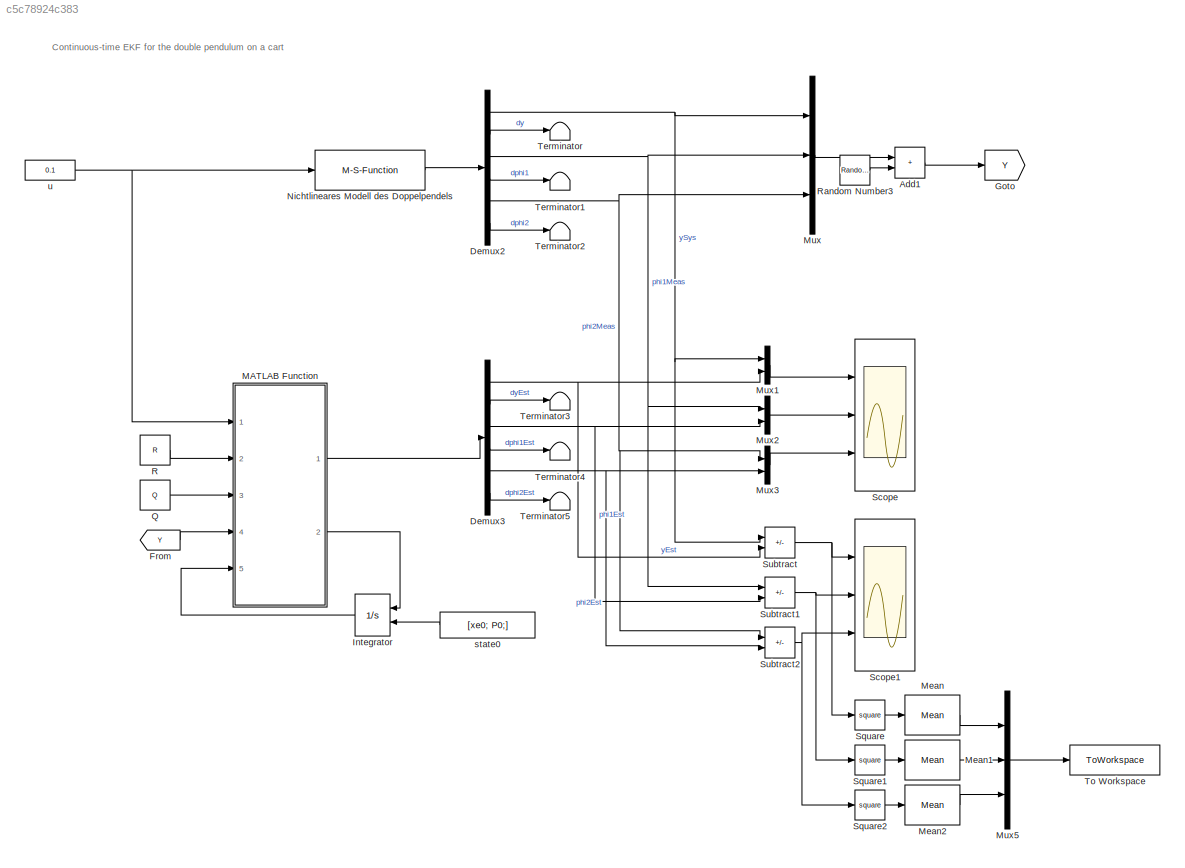
MODEL slx_c5c78924c383
KIND model
CONFIG AbsTol = auto
CONFIG EnableMultiTasking = on
CONFIG FixedStep = 0.01
CONFIG MaxStep = 0.05
CONFIG MinStep = auto
CONFIG RelTol = 1e-3
CONFIG SampleTimeConstraint = Unconstrained
CONFIG Solver = ode45
CONFIG SolverName = ode45
CONFIG StartTime = 0.0
CONFIG StopTime = 30
BLOCK [Sum] Add1
  IconShape = rectangular
  Ports = [2, 1]
BLOCK [Demux] Demux2
  Outputs = 6
  Ports = [1, 6]
BLOCK [Demux] Demux3
  Outputs = 6
  Ports = [1, 6]
BLOCK [From] From
  GotoTag = Y
BLOCK [Goto] Goto
  GotoTag = Y
BLOCK [Integrator] Integrator
  InitialConditionSource = external
  Ports = [2, 1]
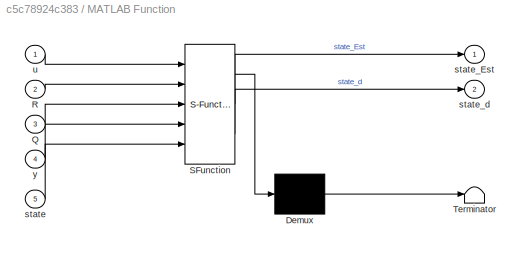
BLOCK [SubSystem] MATLAB Function
  ErrorFcn = Stateflow.Translate.translate
  PermitHierarchicalResolution = ExplicitOnly
  Ports = [5, 2]
  SFBlockType = MATLAB Function
  TreatAsAtomicUnit = on
BLOCK [Demux] MATLAB Function/ Demux 
  Outputs = 1
  Ports = [1, 1]
BLOCK [S-Function] MATLAB Function/ SFunction 
  EnableBusSupport = on
  FunctionName = sf_sfun
  Parameters = par
  PortCounts = [5 3]
  Ports = [5, 3]
  SFcnIsStateOwnerBlock = off
  SFunctionDeploymentMode = off
  Tag = Stateflow S-Function dip_ekf_sim_student_r2017b 2
BLOCK [Terminator] MATLAB Function/ Terminator 
BLOCK [Inport] MATLAB Function/Q
  Port = 3
BLOCK [Inport] MATLAB Function/R
  Port = 2
BLOCK [Inport] MATLAB Function/state
  Port = 5
BLOCK [Outport] MATLAB Function/state_Est
  VectorParamsAs1DForOutWhenUnconnected = off
BLOCK [Outport] MATLAB Function/state_d
  Port = 2
  VectorParamsAs1DForOutWhenUnconnected = off
BLOCK [Inport] MATLAB Function/u
BLOCK [Inport] MATLAB Function/y
  Port = 4
BLOCK [Reference] Mean  REF=dspstat3/Mean
  Ports = [1, 1]
  SourceBlock = dspstat3/Mean
  SourceType = Mean
  UserDataPersistent = on
BLOCK [Reference] Mean1  REF=dspstat3/Mean
  Ports = [1, 1]
  SourceBlock = dspstat3/Mean
  SourceType = Mean
  UserDataPersistent = on
BLOCK [Reference] Mean2  REF=dspstat3/Mean
  Ports = [1, 1]
  SourceBlock = dspstat3/Mean
  SourceType = Mean
  UserDataPersistent = on
BLOCK [Mux] Mux
  DisplayOption = bar
  Inputs = 3
  Ports = [3, 1]
BLOCK [Mux] Mux1
  DisplayOption = bar
  Inputs = 2
  Ports = [2, 1]
BLOCK [Mux] Mux2
  DisplayOption = bar
  Inputs = 2
  Ports = [2, 1]
BLOCK [Mux] Mux3
  DisplayOption = bar
  Inputs = 2
  Ports = [2, 1]
BLOCK [Mux] Mux5
  DisplayOption = bar
  Inputs = 3
  Ports = [3, 1]
BLOCK [M-S-Function] Nichtlineares Modell des Doppelpendels
  FunctionName = dip_sim_ref
  Parameters = x0
  Ports = [1, 1]
BLOCK [Constant] Q
  Value = Q
BLOCK [Constant] R
  Value = R
BLOCK [RandomNumber] Random Number3
  SampleTime = timeStep
  Seed = [0; 1; 2]
  Variance = cov_Noise
BLOCK [Scope] Scope
  Floating = off
  NumInputPorts = 3
  Ports = [3]
  ScopeSpecificationString = Simulink.scopes.TimeScopeBlockCfg('CurrentConfiguration', extmgr.ConfigurationSet(extmgr.Configuration('Core','General UI',true),extmgr.Configuration('Core','Source UI',true),extmgr.Configuration('Sources','WiredSimulink',true),extmgr.Configuration('Visuals','Time Domain',true,'SerializedDisplays',{struct('MinYLimReal','-5.625','MaxYLimReal','50.625','YLabelReal','','MinYLimMag','0.00000','MaxYLim...<+2745ch>
BLOCK [Scope] Scope1
  Floating = off
  NumInputPorts = 3
  Ports = [3]
  ScopeSpecificationString = Simulink.scopes.TimeScopeBlockCfg('CurrentConfiguration', extmgr.ConfigurationSet(extmgr.Configuration('Core','General UI',true,'FigureColor',[1 1 1]),extmgr.Configuration('Core','Source UI',true),extmgr.Configuration('Sources','WiredSimulink',true,'DataLoggingVariableName','ScopeData1'),extmgr.Configuration('Visuals','Time Domain',true,'SerializedDisplays',{struct('MinYLimReal','-0.00572','MaxYLi...<+3185ch>
BLOCK [Math] Square
  Operator = square
  Ports = [1, 1]
BLOCK [Math] Square1
  Operator = square
  Ports = [1, 1]
BLOCK [Math] Square2
  Operator = square
  Ports = [1, 1]
BLOCK [Sum] Subtract
  IconShape = rectangular
  Inputs = +-
  Ports = [2, 1]
BLOCK [Sum] Subtract1
  IconShape = rectangular
  Inputs = +-
  Ports = [2, 1]
BLOCK [Sum] Subtract2
  IconShape = rectangular
  Inputs = +-
  Ports = [2, 1]
BLOCK [Terminator] Terminator
BLOCK [Terminator] Terminator1
BLOCK [Terminator] Terminator2
BLOCK [Terminator] Terminator3
BLOCK [Terminator] Terminator4
BLOCK [Terminator] Terminator5
BLOCK [ToWorkspace] To Workspace
  FixptAsFi = on
  MaxDataPoints = inf
  Ports = [1]
  SampleTime = -1
  Save2DSignal = 2-D array (concatenate along first dimension)
  VariableName = mse
BLOCK [Constant] state0
  Value = [xe0; P0;]
BLOCK [Constant] u
  Value = 0.1
ANNOTATION (root): Continuous-time EKF for the double pendulum on a cart
LINE Add1:1 -> Goto:1
NET Demux2:1 -> Mux1:1, Mux:1, Subtract:1
LINE Demux2:2 -> Terminator:1
NET Demux2:3 -> Mux2:1, Mux:2, Subtract1:1
LINE Demux2:4 -> Terminator1:1
NET Demux2:5 -> Mux3:1, Mux:3, Subtract2:1
LINE Demux2:6 -> Terminator2:1
NET Demux3:1 -> Mux1:2, Subtract:2
LINE Demux3:2 -> Terminator3:1
NET Demux3:3 -> Mux2:2, Subtract1:2
LINE Demux3:4 -> Terminator4:1
NET Demux3:5 -> Mux3:2, Subtract2:2
LINE Demux3:6 -> Terminator5:1
LINE From:1 -> MATLAB Function:4
LINE Integrator:1 -> MATLAB Function:5
LINE MATLAB Function:1 -> Demux3:1
LINE MATLAB Function:2 -> Integrator:1
LINE Mean1:1 -> Mux5:2
LINE Mean2:1 -> Mux5:3
LINE Mean:1 -> Mux5:1
LINE Mux1:1 -> Scope:1
LINE Mux2:1 -> Scope:2
LINE Mux3:1 -> Scope:3
LINE Mux5:1 -> To Workspace:1
LINE Mux:1 -> Add1:1
LINE Nichtlineares Modell des Doppelpendels:1 -> Demux2:1
LINE Q:1 -> MATLAB Function:3
LINE R:1 -> MATLAB Function:2
LINE Random Number3:1 -> Add1:2
LINE Square1:1 -> Mean1:1
LINE Square2:1 -> Mean2:1
LINE Square:1 -> Mean:1
NET Subtract1:1 -> Scope1:2, Square1:1
NET Subtract2:1 -> Scope1:3, Square2:1
NET Subtract:1 -> Scope1:1, Square:1
LINE state0:1 -> Integrator:2
NET u:1 -> MATLAB Function:1, Nichtlineares Modell des Doppelpendels:1
note: NET lines group one-source signal fan-out (src -> all destinations, sorted); 1:1 wires keep LINE
CHART MATLAB Function states=1 transitions=1
  STATE_LABEL 'eML_blk_kernel()'
  STATE_LABEL "SCRIPT:\nfunction [ state_Est, state_d] = fcn(u, R, Q, y,  state, par)\n    \n    x_hat = state(1:6, :);\n    P = reshape( state(7:end), 6,6);\n    \n    F = Fjac( x_hat, u, par);\n    H = [1 0 0 0 0 0; 0 0 1 0 0 0; 0 0 0 0 1 0;];\n    h = @(x) [x(1); x(3); x(5)];\n    \n    L = P*(H')/R;\n    \n    [x_hatd, state_Est] = f(x_hat,u,par);\n    x_hatd = x_hatd +L*(y-h(x_hat));\n    pd = F*P + P*F' + Q - P*(H')*(R\\...<+3608ch>"
